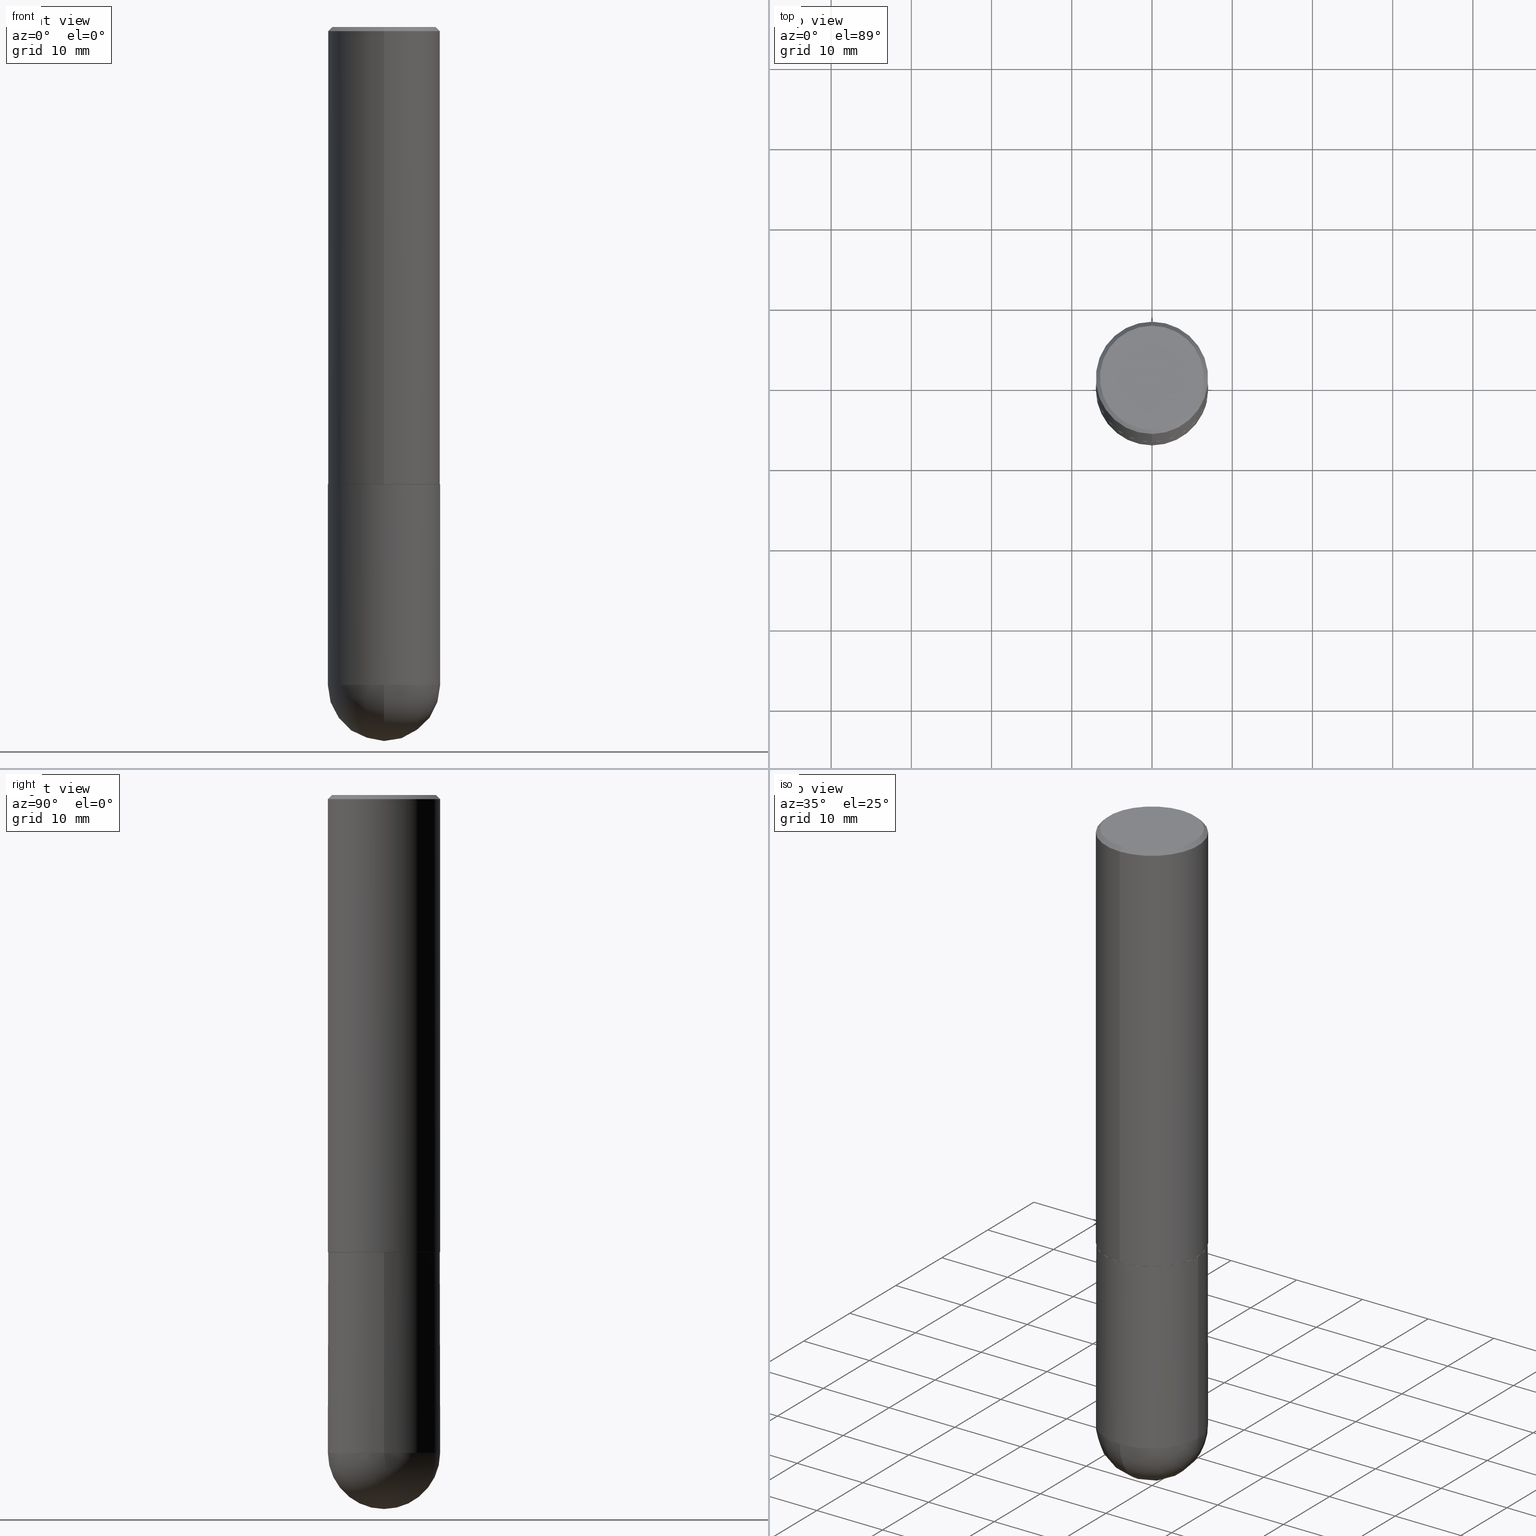
[diagram: canonical four-view strip — front | top / right | iso, engineering-drawing reading convention]
A machine part, canonical four-view strip (front | top / right | iso — engineering-drawing reading convention). The complete STEP part file that produces these views, byte-faithful:
ISO-10303-21;
HEADER;
FILE_DESCRIPTION (( 'STEP AP203' ),
    '1' );
FILE_NAME ('48879.STEP',
    '2024-04-10T12:08:35',
    ( '' ),
    ( '' ),
    'SwSTEP 2.0',
    'SolidWorks 2023',
    '' );
FILE_SCHEMA (( 'CONFIG_CONTROL_DESIGN' ));
ENDSEC;

DATA;
#1 = FACE_OUTER_BOUND ( 'NONE', #71, .T. ) ;
#2 = DIRECTION ( 'NONE',  ( -2.446173056505300385E-29, 3.490472812301231884E-15, 1.000000000000000000 ) ) ;
#3 = EDGE_CURVE ( 'NONE', #323, #331, #314, .T. ) ;
#4 = VERTEX_POINT ( 'NONE', #191 ) ;
#5 = DIRECTION ( 'NONE',  ( -4.851104656540957175E-15, -0.7071067811865490160, -0.7071067811865460184 ) ) ;
#6 = AXIS2_PLACEMENT_3D ( 'NONE', #311, #217, #283 ) ;
#7 = LOCAL_TIME ( 8, 8, 35.00000000000000000, #109 ) ;
#8 = APPLICATION_PROTOCOL_DEFINITION ( 'international standard', 'config_control_design', 1994, #233 ) ;
#9 = DIRECTION ( 'NONE',  ( -2.446173056505300385E-29, 3.490472812301231884E-15, 1.000000000000000000 ) ) ;
#10 = APPROVAL_STATUS ( 'not_yet_approved' ) ;
#11 = EDGE_CURVE ( 'NONE', #70, #4, #210, .T. ) ;
#12 = DIRECTION ( 'NONE',  ( -2.446173056505300385E-29, 3.490472812301231884E-15, 1.000000000000000000 ) ) ;
#13 = CARTESIAN_POINT ( 'NONE',  ( 4.892346113010616569E-31, -6.980945624602486202E-17, -0.02000000000000006287 ) ) ;
#14 = ORIENTED_EDGE ( 'NONE', *, *, #402, .F. ) ;
#15 = DIRECTION ( 'NONE',  ( 1.000000000000000000, -6.982962677686265922E-15, 4.883557194083112340E-29 ) ) ;
#16 = APPROVAL ( #199, 'UNSPECIFIED' ) ;
#17 = APPROVAL_ROLE ( '' ) ;
#18 = COORDINATED_UNIVERSAL_TIME_OFFSET ( 5, 0, .BEHIND. ) ;
#19 = CARTESIAN_POINT ( 'NONE',  ( 7.894706947007475996E-29, -1.127154920618732565E-14, -3.228299999999999503 ) ) ;
#20 = CIRCLE ( 'NONE', #364, 0.2555999999999998828 ) ;
#21 = ORIENTED_EDGE ( 'NONE', *, *, #86, .F. ) ;
#22 = EDGE_CURVE ( 'NONE', #155, #323, #158, .T. ) ;
#23 = ORIENTED_EDGE ( 'NONE', *, *, #305, .F. ) ;
#24 = CARTESIAN_POINT ( 'NONE',  ( 1.958255779754864988E-15, 0.2755999999999924621, -2.243100000000000538 ) ) ;
#25 = CC_DESIGN_PERSON_AND_ORGANIZATION_ASSIGNMENT ( #50, #26, ( #229 ) ) ;
#26 = PERSON_AND_ORGANIZATION_ROLE ( 'design_supplier' ) ;
#27 = LINE ( 'NONE', #93, #403 ) ;
#28 = CARTESIAN_POINT ( 'NONE',  ( 1.958255779754836589E-15, 0.2756000000000001227, -9.619743070702200430E-16 ) ) ;
#29 = DIRECTION ( 'NONE',  ( -2.445468806185136597E-29, 3.491481338843145583E-15, 1.000000000000000000 ) ) ;
#30 = AXIS2_PLACEMENT_3D ( 'NONE', #297, #15, #327 ) ;
#31 = CARTESIAN_POINT ( 'NONE',  ( 5.487010783047037445E-29, -7.829479565272891887E-15, -2.243099999999999206 ) ) ;
#32 =( LENGTH_UNIT ( ) NAMED_UNIT ( * ) SI_UNIT ( $, .METRE. ) );
#33 = ORIENTED_EDGE ( 'NONE', *, *, #45, .F. ) ;
#34 = ORIENTED_EDGE ( 'NONE', *, *, #45, .T. ) ;
#35 = CIRCLE ( 'NONE', #337, 0.2756000000000002892 ) ;
#36 = AXIS2_PLACEMENT_3D ( 'NONE', #13, #12, #135 ) ;
#37 = EDGE_CURVE ( 'NONE', #257, #88, #27, .T. ) ;
#38 = DIRECTION ( 'NONE',  ( -2.446173056505300385E-29, 3.490472812301231884E-15, 1.000000000000000000 ) ) ;
#39 = CARTESIAN_POINT ( 'NONE',  ( -1.958255779754759675E-15, -0.2756000000000117245, -3.228299999999998615 ) ) ;
#40 = DIRECTION ( 'NONE',  ( -2.446173056505300385E-29, 3.490472812301231884E-15, 1.000000000000000000 ) ) ;
#41 = VERTEX_POINT ( 'NONE', #288 ) ;
#42 = FACE_OUTER_BOUND ( 'NONE', #388, .T. ) ;
#43 = AXIS2_PLACEMENT_3D ( 'NONE', #254, #56, #408 ) ;
#44 = LOCAL_TIME ( 8, 8, 35.00000000000000000, #370 ) ;
#45 = EDGE_CURVE ( 'NONE', #200, #331, #148, .T. ) ;
#46 = DIRECTION ( 'NONE',  ( -2.446173056505300385E-29, 3.490472812301231884E-15, 1.000000000000000000 ) ) ;
#47 = VECTOR ( 'NONE', #369, 39.37007874015748143 ) ;
#48 = VECTOR ( 'NONE', #320, 39.37007874015748143 ) ;
#49 = ORIENTED_EDGE ( 'NONE', *, *, #86, .T. ) ;
#50 = PERSON_AND_ORGANIZATION ( #214, #157 ) ;
#51 = ORIENTED_EDGE ( 'NONE', *, *, #37, .T. ) ;
#52 = VECTOR ( 'NONE', #374, 39.37007874015748143 ) ;
#53 = AXIS2_PLACEMENT_3D ( 'NONE', #174, #310, #177 ) ;
#54 = DIRECTION ( 'NONE',  ( -2.446173056505300385E-29, 3.490472812301231884E-15, 1.000000000000000000 ) ) ;
#55 = CYLINDRICAL_SURFACE ( 'NONE', #53, 0.2756000000000000671 ) ;
#56 = DIRECTION ( 'NONE',  ( -2.446173056505300385E-29, 3.490472812301231884E-15, 1.000000000000000000 ) ) ;
#57 = FACE_OUTER_BOUND ( 'NONE', #401, .T. ) ;
#58 = CARTESIAN_POINT ( 'NONE',  ( -1.822148268208117987E-15, -0.2555999999999998828, 9.772773212420895646E-16 ) ) ;
#59 = ADVANCED_FACE ( 'NONE', ( #173 ), #258, .T. ) ;
#60 = DIRECTION ( 'NONE',  ( 2.446173056505300385E-29, -3.490472812301231884E-15, -1.000000000000000000 ) ) ;
#61 = LINE ( 'NONE', #251, #52 ) ;
#62 = AXIS2_PLACEMENT_3D ( 'NONE', #321, #201, #269 ) ;
#63 = EDGE_LOOP ( 'NONE', ( #223, #34, #268, #69 ) ) ;
#64 = PLANE ( 'NONE',  #271 ) ;
#65 = ORIENTED_EDGE ( 'NONE', *, *, #390, .T. ) ;
#66 = VERTEX_POINT ( 'NONE', #317 ) ;
#67 = CARTESIAN_POINT ( 'NONE',  ( -2.081998319088594359E-45, 2.970827639814557761E-31, 8.511247041789512322E-17 ) ) ;
#68 = AXIS2_PLACEMENT_3D ( 'NONE', #197, #231, #195 ) ;
#69 = ORIENTED_EDGE ( 'NONE', *, *, #22, .F. ) ;
#70 = VERTEX_POINT ( 'NONE', #126 ) ;
#71 = EDGE_LOOP ( 'NONE', ( #272, #351, #264, #21 ) ) ;
#72 = APPROVAL_ROLE ( '' ) ;
#73 = ADVANCED_FACE ( 'NONE', ( #281 ), #164, .T. ) ;
#74 = PLANE ( 'NONE',  #68 ) ;
#75 = DIRECTION ( 'NONE',  ( -6.982962677686265133E-15, -1.000000000000000000, 3.979385278462145862E-15 ) ) ;
#76 = CLOSED_SHELL ( 'NONE', ( #290, #81, #300, #273, #249 ) ) ;
#77 = DIMENSIONAL_EXPONENTS ( 1.000000000000000000, 0.000000000000000000, 0.000000000000000000, 0.000000000000000000, 0.000000000000000000, 0.000000000000000000, 0.000000000000000000 ) ;
#78 = DATE_TIME_ROLE ( 'creation_date' ) ;
#79 = ORIENTED_EDGE ( 'NONE', *, *, #348, .F. ) ;
#80 = DATE_AND_TIME ( #387, #7 ) ;
#81 = ADVANCED_FACE ( 'NONE', ( #1 ), #379, .T. ) ;
#82 = ORIENTED_EDGE ( 'NONE', *, *, #305, .T. ) ;
#83 = AXIS2_PLACEMENT_3D ( 'NONE', #319, #224, #127 ) ;
#84 = SHAPE_DEFINITION_REPRESENTATION ( #247, #389 ) ;
#85 = ORIENTED_EDGE ( 'NONE', *, *, #113, .F. ) ;
#86 = EDGE_CURVE ( 'NONE', #353, #378, #356, .T. ) ;
#87 = DIRECTION ( 'NONE',  ( -6.982962677686265922E-15, -1.000000000000000000, 3.964946289788476952E-15 ) ) ;
#88 = VERTEX_POINT ( 'NONE', #382 ) ;
#89 = VECTOR ( 'NONE', #9, 39.37007874015748143 ) ;
#90 = MECHANICAL_CONTEXT ( 'NONE', #107, 'mechanical' ) ;
#91 = AXIS2_PLACEMENT_3D ( 'NONE', #349, #289, #256 ) ;
#92 = DIRECTION ( 'NONE',  ( -2.446173056505300385E-29, 3.490472812301231884E-15, 1.000000000000000000 ) ) ;
#93 = CARTESIAN_POINT ( 'NONE',  ( 0.2756000000000000671, -1.924504513970335743E-15, 1.343874319409360268E-29 ) ) ;
#94 = CC_DESIGN_PERSON_AND_ORGANIZATION_ASSIGNMENT ( #386, #393, ( #206 ) ) ;
#95 = DIRECTION ( 'NONE',  ( 6.982962677686265922E-15, 1.000000000000000000, -3.964946289788475374E-15 ) ) ;
#96 = DIRECTION ( 'NONE',  ( 2.446173056505300105E-29, -3.490472812301231884E-15, -1.000000000000000000 ) ) ;
#97 = ORIENTED_EDGE ( 'NONE', *, *, #138, .T. ) ;
#98 = CARTESIAN_POINT ( 'NONE',  ( -1.890753248185833319E-15, -0.2756000000000000671, -0.01999999999999910530 ) ) ;
#99 = ORIENTED_EDGE ( 'NONE', *, *, #22, .T. ) ;
#100 = DIRECTION ( 'NONE',  ( -1.000000000000000000, 6.982962677686265922E-15, -4.876176775795935793E-29 ) ) ;
#101 = VERTEX_POINT ( 'NONE', #58 ) ;
#102 = AXIS2_PLACEMENT_3D ( 'NONE', #19, #270, #296 ) ;
#103 = EDGE_LOOP ( 'NONE', ( #33, #117, #99, #134 ) ) ;
#104 = ORIENTED_EDGE ( 'NONE', *, *, #348, .T. ) ;
#105 = CC_DESIGN_PERSON_AND_ORGANIZATION_ASSIGNMENT ( #399, #342, ( #202 ) ) ;
#106 = UNCERTAINTY_MEASURE_WITH_UNIT (LENGTH_MEASURE( 1.000000000000000082E-05 ), #176, 'distance_accuracy_value', 'NONE');
#107 = APPLICATION_CONTEXT ( 'configuration controlled 3d designs of mechanical parts and assemblies' ) ;
#108 = LINE ( 'NONE', #213, #111 ) ;
#109 = COORDINATED_UNIVERSAL_TIME_OFFSET ( 5, 0, .BEHIND. ) ;
#110 = CONICAL_SURFACE ( 'NONE', #83, 0.2756000000000000116, 0.7853981633974469467 ) ;
#111 = VECTOR ( 'NONE', #198, 39.37007874015748143 ) ;
#112 = COORDINATED_UNIVERSAL_TIME_OFFSET ( 5, 0, .BEHIND. ) ;
#113 = EDGE_CURVE ( 'NONE', #41, #331, #376, .T. ) ;
#114 = CARTESIAN_POINT ( 'NONE',  ( 1.924504513970335348E-15, 0.2755999999999999006, -0.02000000000000102390 ) ) ;
#115 = MANIFOLD_SOLID_BREP ( 'Body-Move/Copy2[1]', #76 ) ;
#116 = PERSON_AND_ORGANIZATION ( #214, #157 ) ;
#117 = ORIENTED_EDGE ( 'NONE', *, *, #147, .T. ) ;
#118 = PERSON_AND_ORGANIZATION_ROLE ( 'creator' ) ;
#119 = EDGE_LOOP ( 'NONE', ( #333, #266 ) ) ;
#120 = CIRCLE ( 'NONE', #137, 0.2756000000000003447 ) ;
#121 = DIRECTION ( 'NONE',  ( -1.000000000000000000, 6.982962677686265922E-15, -4.883557194083112340E-29 ) ) ;
#122 = CARTESIAN_POINT ( 'NONE',  ( 5.487010783047037445E-29, -7.829479565272891887E-15, -2.243099999999999206 ) ) ;
#123 = AXIS2_PLACEMENT_3D ( 'NONE', #343, #92, #287 ) ;
#124 = APPROVAL_PERSON_ORGANIZATION ( #293, #259, #72 ) ;
#125 = ADVANCED_FACE ( 'NONE', ( #221 ), #146, .T. ) ;
#126 = CARTESIAN_POINT ( 'NONE',  ( -1.917521551292593719E-15, -0.2746000000000077823, -2.244099999999998207 ) ) ;
#127 = DIRECTION ( 'NONE',  ( 6.982962677686265922E-15, 1.000000000000000000, -3.484816075009406388E-15 ) ) ;
#128 = EDGE_LOOP ( 'NONE', ( #302, #168, #143, #192 ) ) ;
#129 = CARTESIAN_POINT ( 'NONE',  ( 7.894706947007475996E-29, -1.127154920618732565E-14, -3.228299999999999503 ) ) ;
#130 = FACE_OUTER_BOUND ( 'NONE', #304, .T. ) ;
#131 = CARTESIAN_POINT ( 'NONE',  ( -1.924504513970335743E-15, -0.2756000000000001227, 9.619743070702200430E-16 ) ) ;
#132 = CARTESIAN_POINT ( 'NONE',  ( 7.563587169093589749E-29, -1.174573157432737594E-14, -3.228299999999999503 ) ) ;
#133 = AXIS2_PLACEMENT_3D ( 'NONE', #175, #121, #95 ) ;
#134 = ORIENTED_EDGE ( 'NONE', *, *, #407, .F. ) ;
#135 = DIRECTION ( 'NONE',  ( -6.982962677686265922E-15, -1.000000000000000000, 3.484816075009406388E-15 ) ) ;
#136 = EDGE_CURVE ( 'NONE', #66, #88, #361, .T. ) ;
#137 = AXIS2_PLACEMENT_3D ( 'NONE', #132, #262, #385 ) ;
#138 = EDGE_CURVE ( 'NONE', #4, #70, #171, .T. ) ;
#139 = CALENDAR_DATE ( 2024, 10, 4 ) ;
#140 = CLOSED_SHELL ( 'NONE', ( #232, #59, #278, #285, #125, #73, #341, #194 ) ) ;
#141 =( GEOMETRIC_REPRESENTATION_CONTEXT ( 3 ) GLOBAL_UNCERTAINTY_ASSIGNED_CONTEXT ( ( #106 ) ) GLOBAL_UNIT_ASSIGNED_CONTEXT ( ( #176, #184, #322 ) ) REPRESENTATION_CONTEXT ( 'NONE', 'WORKASPACE' ) );
#142 = EDGE_LOOP ( 'NONE', ( #49, #238, #375, #330, #274 ) ) ;
#143 = ORIENTED_EDGE ( 'NONE', *, *, #190, .F. ) ;
#144 = CIRCLE ( 'NONE', #172, 0.2756000000000000671 ) ;
#145 = LINE ( 'NONE', #280, #48 ) ;
#146 = CYLINDRICAL_SURFACE ( 'NONE', #391, 0.2756000000000001227 ) ;
#147 = EDGE_CURVE ( 'NONE', #200, #155, #235, .T. ) ;
#148 = LINE ( 'NONE', #28, #47 ) ;
#149 = APPROVAL_PERSON_ORGANIZATION ( #207, #16, #17 ) ;
#150 = CARTESIAN_POINT ( 'NONE',  ( 1.924504513970389780E-15, 0.2755999999999921846, -2.244100000000000428 ) ) ;
#151 = DIRECTION ( 'NONE',  ( 1.000000000000000000, -6.982962677686265922E-15, 0.000000000000000000 ) ) ;
#152 = EDGE_CURVE ( 'NONE', #378, #66, #61, .T. ) ;
#153 = DIRECTION ( 'NONE',  ( -6.982962677686265922E-15, -1.000000000000000000, 3.484816075009406388E-15 ) ) ;
#154 = CARTESIAN_POINT ( 'NONE',  ( -1.890753248185833319E-15, -0.2756000000000000671, -0.01999999999999910530 ) ) ;
#155 = VERTEX_POINT ( 'NONE', #182 ) ;
#156 = AXIS2_PLACEMENT_3D ( 'NONE', #350, #406, #340 ) ;
#157 = ORGANIZATION ( 'UNSPECIFIED', 'UNSPECIFIED', '' ) ;
#158 = LINE ( 'NONE', #131, #89 ) ;
#159 = DIRECTION ( 'NONE',  ( -2.446173056505300385E-29, 3.490472812301231884E-15, 1.000000000000000000 ) ) ;
#160 = DIRECTION ( 'NONE',  ( -6.982962677686265133E-15, -1.000000000000000000, 3.979385278462145862E-15 ) ) ;
#161 = EDGE_CURVE ( 'NONE', #155, #200, #35, .T. ) ;
#162 = CARTESIAN_POINT ( 'NONE',  ( -2.081998319088594359E-45, 2.970827639814557761E-31, 8.511247041789512322E-17 ) ) ;
#163 = ORIENTED_EDGE ( 'NONE', *, *, #407, .T. ) ;
#164 = CONICAL_SURFACE ( 'NONE', #43, 0.2746000000000000107, 0.7853981633975507526 ) ;
#165 = AXIS2_PLACEMENT_3D ( 'NONE', #122, #344, #87 ) ;
#166 = CC_DESIGN_APPROVAL ( #259, ( #324 ) ) ;
#167 = APPROVAL_DATE_TIME ( #80, #16 ) ;
#168 = ORIENTED_EDGE ( 'NONE', *, *, #359, .T. ) ;
#169 = CC_DESIGN_PERSON_AND_ORGANIZATION_ASSIGNMENT ( #244, #308, ( #229 ) ) ;
#170 = APPROVAL_ROLE ( '' ) ;
#171 = CIRCLE ( 'NONE', #6, 0.2746000000000000107 ) ;
#172 = AXIS2_PLACEMENT_3D ( 'NONE', #255, #345, #325 ) ;
#173 = FACE_OUTER_BOUND ( 'NONE', #63, .T. ) ;
#174 = CARTESIAN_POINT ( 'NONE',  ( 0.000000000000000000, 0.000000000000000000, 0.000000000000000000 ) ) ;
#175 = CARTESIAN_POINT ( 'NONE',  ( 7.563587169093589749E-29, -1.174573157432737594E-14, -3.228299999999999503 ) ) ;
#176 =( CONVERSION_BASED_UNIT ( 'INCH', #347 ) LENGTH_UNIT ( ) NAMED_UNIT ( #77 ) );
#177 = DIRECTION ( 'NONE',  ( 1.000000000000000000, -6.982962677686267499E-15, 4.876176775795935793E-29 ) ) ;
#178 = CARTESIAN_POINT ( 'NONE',  ( 1.924504513970335348E-15, 0.2755999999999999006, -0.02000000000000102390 ) ) ;
#179 = AXIS2_PLACEMENT_3D ( 'NONE', #412, #187, #309 ) ;
#180 = CARTESIAN_POINT ( 'NONE',  ( 4.892346113010616569E-31, -6.980945624602486202E-17, -0.02000000000000006287 ) ) ;
#181 = ORIENTED_EDGE ( 'NONE', *, *, #11, .T. ) ;
#182 = CARTESIAN_POINT ( 'NONE',  ( -1.924504513970282100E-15, -0.2756000000000080608, -2.243099999999998317 ) ) ;
#183 = ORIENTED_EDGE ( 'NONE', *, *, #147, .F. ) ;
#184 =( NAMED_UNIT ( * ) PLANE_ANGLE_UNIT ( ) SI_UNIT ( $, .RADIAN. ) );
#185 = PLANE ( 'NONE',  #219 ) ;
#186 = DIRECTION ( 'NONE',  ( 6.982962677686265922E-15, 1.000000000000000000, -3.490472812301231884E-15 ) ) ;
#187 = DIRECTION ( 'NONE',  ( 0.000000000000000000, 0.000000000000000000, 1.000000000000000000 ) ) ;
#188 = CARTESIAN_POINT ( 'NONE',  ( 5.489456956103543393E-29, -7.832970038085193141E-15, -2.244099999999999540 ) ) ;
#189 = DIRECTION ( 'NONE',  ( -2.446173056505300385E-29, 3.490472812301231884E-15, 1.000000000000000000 ) ) ;
#190 = EDGE_CURVE ( 'NONE', #257, #353, #373, .T. ) ;
#191 = CARTESIAN_POINT ( 'NONE',  ( 1.954703066076090911E-15, 0.2745999999999921837, -2.244100000000000428 ) ) ;
#192 = ORIENTED_EDGE ( 'NONE', *, *, #390, .F. ) ;
#193 = EDGE_LOOP ( 'NONE', ( #14, #82, #240, #85 ) ) ;
#194 = ADVANCED_FACE ( 'NONE', ( #130 ), #64, .F. ) ;
#195 = DIRECTION ( 'NONE',  ( -6.982962677686265922E-15, -1.000000000000000000, 3.490472812301231884E-15 ) ) ;
#196 = CC_DESIGN_APPROVAL ( #329, ( #202 ) ) ;
#197 = CARTESIAN_POINT ( 'NONE',  ( 5.489456956103543393E-29, -7.832970038085193141E-15, -2.244099999999999540 ) ) ;
#198 = DIRECTION ( 'NONE',  ( -4.937700262165053702E-15, -0.7071067811866175168, 0.7071067811864775177 ) ) ;
#199 = APPROVAL_STATUS ( 'not_yet_approved' ) ;
#200 = VERTEX_POINT ( 'NONE', #24 ) ;
#201 = DIRECTION ( 'NONE',  ( -2.445468806185136597E-29, 3.491481338843145583E-15, 1.000000000000000000 ) ) ;
#202 = SECURITY_CLASSIFICATION ( '', '', #303 ) ;
#203 = EDGE_CURVE ( 'NONE', #4, #200, #145, .T. ) ;
#204 = EDGE_LOOP ( 'NONE', ( #181, #230, #276, #248 ) ) ;
#205 = DATE_AND_TIME ( #306, #44 ) ;
#206 = PRODUCT ( '48879', '48879', '', ( #90 ) ) ;
#207 = PERSON_AND_ORGANIZATION ( #214, #157 ) ;
#208 = DESIGN_CONTEXT ( 'detailed design', #233, 'design' ) ;
#209 = DIRECTION ( 'NONE',  ( 1.000000000000000000, -6.982962677686264344E-15, 0.000000000000000000 ) ) ;
#210 = CIRCLE ( 'NONE', #227, 0.2746000000000000107 ) ;
#211 = CIRCLE ( 'NONE', #36, 0.2756000000000000116 ) ;
#212 = DIRECTION ( 'NONE',  ( -6.982962677686265922E-15, -1.000000000000000000, 3.964946289788476952E-15 ) ) ;
#213 = CARTESIAN_POINT ( 'NONE',  ( -1.917521551292593719E-15, -0.2746000000000077823, -2.244099999999998207 ) ) ;
#214 = PERSON ( 'UNSPECIFIED', 'UNSPECIFIED', 'UNSPECIFIED', ('UNSPECIFIED'), ('UNSPECIFIED'), ('UNSPECIFIED') ) ;
#215 = DIRECTION ( 'NONE',  ( -6.982962677686265922E-15, -1.000000000000000000, 3.490472812301232279E-15 ) ) ;
#216 = FACE_OUTER_BOUND ( 'NONE', #119, .T. ) ;
#217 = DIRECTION ( 'NONE',  ( -2.446173056505300385E-29, 3.490472812301231884E-15, 1.000000000000000000 ) ) ;
#218 = CC_DESIGN_DATE_AND_TIME_ASSIGNMENT ( #245, #78, ( #324 ) ) ;
#219 = AXIS2_PLACEMENT_3D ( 'NONE', #150, #282, #100 ) ;
#220 = FACE_OUTER_BOUND ( 'NONE', #142, .T. ) ;
#221 = FACE_OUTER_BOUND ( 'NONE', #103, .T. ) ;
#222 = EDGE_LOOP ( 'NONE', ( #358, #355 ) ) ;
#223 = ORIENTED_EDGE ( 'NONE', *, *, #161, .T. ) ;
#224 = DIRECTION ( 'NONE',  ( 2.446173056505300385E-29, -3.490472812301231884E-15, -1.000000000000000000 ) ) ;
#225 = EDGE_CURVE ( 'NONE', #70, #155, #108, .T. ) ;
#226 = ORIENTED_EDGE ( 'NONE', *, *, #113, .T. ) ;
#227 = AXIS2_PLACEMENT_3D ( 'NONE', #295, #40, #160 ) ;
#228 = ORIENTED_EDGE ( 'NONE', *, *, #402, .T. ) ;
#229 = PRODUCT_DEFINITION_FORMATION_WITH_SPECIFIED_SOURCE ( 'ANY', '', #206, .NOT_KNOWN. ) ;
#230 = ORIENTED_EDGE ( 'NONE', *, *, #203, .T. ) ;
#231 = DIRECTION ( 'NONE',  ( -2.446173056505300105E-29, 3.490472812301231884E-15, 1.000000000000000000 ) ) ;
#232 = ADVANCED_FACE ( 'NONE', ( #368 ), #397, .T. ) ;
#233 = APPLICATION_CONTEXT ( 'configuration controlled 3d designs of mechanical parts and assemblies' ) ;
#234 = CARTESIAN_POINT ( 'NONE',  ( -0.2756000000000000671, -7.595135459587778194E-15, -3.228299999999999503 ) ) ;
#235 = CIRCLE ( 'NONE', #165, 0.2756000000000002892 ) ;
#236 = AXIS2_PLACEMENT_3D ( 'NONE', #67, #189, #294 ) ;
#237 = CALENDAR_DATE ( 2024, 10, 4 ) ;
#238 = ORIENTED_EDGE ( 'NONE', *, *, #152, .T. ) ;
#239 = APPROVAL_DATE_TIME ( #400, #259 ) ;
#240 = ORIENTED_EDGE ( 'NONE', *, *, #3, .T. ) ;
#241 = EDGE_CURVE ( 'NONE', #378, #367, #144, .T. ) ;
#242 = EDGE_LOOP ( 'NONE', ( #253, #97, #366, #183 ) ) ;
#243 = AXIS2_PLACEMENT_3D ( 'NONE', #188, #46, #75 ) ;
#244 = PERSON_AND_ORGANIZATION ( #214, #157 ) ;
#245 = DATE_AND_TIME ( #237, #411 ) ;
#246 = COORDINATED_UNIVERSAL_TIME_OFFSET ( 5, 0, .BEHIND. ) ;
#247 = PRODUCT_DEFINITION_SHAPE ( 'NONE', 'NONE',  #324 ) ;
#248 = ORIENTED_EDGE ( 'NONE', *, *, #225, .F. ) ;
#249 = ADVANCED_FACE ( 'NONE', ( #42 ), #383, .T. ) ;
#250 = DIRECTION ( 'NONE',  ( -2.445468806185136877E-29, 3.491481338843145188E-15, 1.000000000000000000 ) ) ;
#251 = CARTESIAN_POINT ( 'NONE',  ( -0.2756000000000000671, 1.958255779754836589E-15, -1.355658510874252287E-29 ) ) ;
#252 = CIRCLE ( 'NONE', #102, 0.2756000000000000671 ) ;
#253 = ORIENTED_EDGE ( 'NONE', *, *, #203, .F. ) ;
#254 = CARTESIAN_POINT ( 'NONE',  ( 5.489456956103543393E-29, -7.832970038085193141E-15, -2.244099999999999540 ) ) ;
#255 = CARTESIAN_POINT ( 'NONE',  ( 7.894706947007475996E-29, -1.127154920618732565E-14, -3.228299999999999503 ) ) ;
#256 = DIRECTION ( 'NONE',  ( 6.982962677686265922E-15, 1.000000000000000000, -3.964946289788475374E-15 ) ) ;
#257 = VERTEX_POINT ( 'NONE', #275 ) ;
#258 = CYLINDRICAL_SURFACE ( 'NONE', #123, 0.2756000000000001227 ) ;
#259 = APPROVAL ( #10, 'UNSPECIFIED' ) ;
#260 = CARTESIAN_POINT ( 'NONE',  ( 1.784845260416608752E-15, 0.2555999999999998828, -8.496086156152468860E-16 ) ) ;
#261 = MANIFOLD_SOLID_BREP ( 'Body-Move/Copy2[2]', #140 ) ;
#262 = DIRECTION ( 'NONE',  ( -1.000000000000000000, 7.105427357601001070E-15, -4.926315508542082329E-29 ) ) ;
#263 = DIRECTION ( 'NONE',  ( 6.982962677686265922E-15, 1.000000000000000000, -3.484816075009406388E-15 ) ) ;
#264 = ORIENTED_EDGE ( 'NONE', *, *, #241, .F. ) ;
#265 = VERTEX_POINT ( 'NONE', #372 ) ;
#266 = ORIENTED_EDGE ( 'NONE', *, *, #136, .T. ) ;
#267 = AXIS2_PLACEMENT_3D ( 'NONE', #129, #29, #209 ) ;
#268 = ORIENTED_EDGE ( 'NONE', *, *, #3, .F. ) ;
#269 = DIRECTION ( 'NONE',  ( 1.000000000000000000, -6.982962677686267499E-15, 4.876176775795935793E-29 ) ) ;
#270 = DIRECTION ( 'NONE',  ( -2.445468806185136597E-29, 3.491481338843145583E-15, 1.000000000000000000 ) ) ;
#271 = AXIS2_PLACEMENT_3D ( 'NONE', #260, #96, #186 ) ;
#272 = ORIENTED_EDGE ( 'NONE', *, *, #359, .F. ) ;
#273 = ADVANCED_FACE ( 'NONE', ( #216 ), #185, .F. ) ;
#274 = ORIENTED_EDGE ( 'NONE', *, *, #190, .T. ) ;
#275 = CARTESIAN_POINT ( 'NONE',  ( 0.2756000000000000671, -1.147789575331294974E-14, -3.228299999999999503 ) ) ;
#276 = ORIENTED_EDGE ( 'NONE', *, *, #161, .F. ) ;
#277 = VECTOR ( 'NONE', #313, 39.37007874015748143 ) ;
#278 = ADVANCED_FACE ( 'NONE', ( #286 ), #384, .T. ) ;
#279 = CC_DESIGN_SECURITY_CLASSIFICATION ( #202, ( #229 ) ) ;
#280 = CARTESIAN_POINT ( 'NONE',  ( 1.951150352397289618E-15, 0.2745999999999921837, -2.244100000000000428 ) ) ;
#281 = FACE_OUTER_BOUND ( 'NONE', #242, .T. ) ;
#282 = DIRECTION ( 'NONE',  ( 2.438088387897960049E-29, -3.491481338843145188E-15, -1.000000000000000000 ) ) ;
#283 = DIRECTION ( 'NONE',  ( -6.982962677686265133E-15, -1.000000000000000000, 3.979385278462145862E-15 ) ) ;
#284 = AXIS2_PLACEMENT_3D ( 'NONE', #180, #60, #263 ) ;
#285 = ADVANCED_FACE ( 'NONE', ( #57 ), #110, .T. ) ;
#286 = FACE_OUTER_BOUND ( 'NONE', #193, .T. ) ;
#287 = DIRECTION ( 'NONE',  ( -6.982962677686265922E-15, -1.000000000000000000, 3.490472812301232279E-15 ) ) ;
#288 = CARTESIAN_POINT ( 'NONE',  ( 1.854674887193472050E-15, 0.2555999999999998828, -8.070523804062993922E-16 ) ) ;
#289 = DIRECTION ( 'NONE',  ( -1.000000000000000000, 6.982962677686265922E-15, -4.883557194083112340E-29 ) ) ;
#290 = ADVANCED_FACE ( 'NONE', ( #220 ), #55, .T. ) ;
#291 = CIRCLE ( 'NONE', #404, 0.2756000000000000116 ) ;
#292 = CC_DESIGN_APPROVAL ( #16, ( #229 ) ) ;
#293 = PERSON_AND_ORGANIZATION ( #214, #157 ) ;
#294 = DIRECTION ( 'NONE',  ( -6.982962677686265922E-15, -1.000000000000000000, 3.490472812301231490E-15 ) ) ;
#295 = CARTESIAN_POINT ( 'NONE',  ( 5.489456956103543393E-29, -7.832970038085193141E-15, -2.244099999999999540 ) ) ;
#296 = DIRECTION ( 'NONE',  ( 1.000000000000000000, -6.982962677686264344E-15, 0.000000000000000000 ) ) ;
#297 = CARTESIAN_POINT ( 'NONE',  ( 7.563587169093589749E-29, -1.174573157432737594E-14, -3.228299999999999503 ) ) ;
#298 = LOCAL_TIME ( 8, 8, 35.00000000000000000, #246 ) ;
#299 = DIRECTION ( 'NONE',  ( 1.000000000000000000, -6.982962677686265922E-15, 0.000000000000000000 ) ) ;
#300 = ADVANCED_FACE ( 'NONE', ( #316 ), #352, .T. ) ;
#301 = CIRCLE ( 'NONE', #236, 0.2555999999999998828 ) ;
#302 = ORIENTED_EDGE ( 'NONE', *, *, #312, .F. ) ;
#303 = SECURITY_CLASSIFICATION_LEVEL ( 'unclassified' ) ;
#304 = EDGE_LOOP ( 'NONE', ( #104, #228 ) ) ;
#305 = EDGE_CURVE ( 'NONE', #101, #323, #377, .T. ) ;
#306 = CALENDAR_DATE ( 2024, 10, 4 ) ;
#307 = DIRECTION ( 'NONE',  ( -2.445468806185136597E-29, 3.491481338843145583E-15, 1.000000000000000000 ) ) ;
#308 = PERSON_AND_ORGANIZATION_ROLE ( 'creator' ) ;
#309 = DIRECTION ( 'NONE',  ( 1.000000000000000000, 0.000000000000000000, 0.000000000000000000 ) ) ;
#310 = DIRECTION ( 'NONE',  ( -2.445468806185136597E-29, 3.491481338843145583E-15, 1.000000000000000000 ) ) ;
#311 = CARTESIAN_POINT ( 'NONE',  ( 5.489456956103543393E-29, -7.832970038085193141E-15, -2.244099999999999540 ) ) ;
#312 = EDGE_CURVE ( 'NONE', #265, #367, #120, .T. ) ;
#313 = DIRECTION ( 'NONE',  ( 4.937700262164540942E-15, 0.7071067811865441310, -0.7071067811865509034 ) ) ;
#314 = CIRCLE ( 'NONE', #409, 0.2756000000000000116 ) ;
#315 = VECTOR ( 'NONE', #5, 39.37007874015748143 ) ;
#316 = FACE_OUTER_BOUND ( 'NONE', #128, .T. ) ;
#317 = CARTESIAN_POINT ( 'NONE',  ( -0.2756000000000000116, -7.595135459587776616E-15, -2.244099999999999540 ) ) ;
#318 = CARTESIAN_POINT ( 'NONE',  ( 4.892346113010616569E-31, -6.980945624602486202E-17, -0.02000000000000006287 ) ) ;
#319 = CARTESIAN_POINT ( 'NONE',  ( 4.892346113010616569E-31, -6.980945624602486202E-17, -0.02000000000000006287 ) ) ;
#320 = DIRECTION ( 'NONE',  ( 5.024295867788576727E-15, 0.7071067811866224018, 0.7071067811864726327 ) ) ;
#321 = CARTESIAN_POINT ( 'NONE',  ( 0.000000000000000000, 0.000000000000000000, 0.000000000000000000 ) ) ;
#322 =( NAMED_UNIT ( * ) SI_UNIT ( $, .STERADIAN. ) SOLID_ANGLE_UNIT ( ) );
#323 = VERTEX_POINT ( 'NONE', #98 ) ;
#324 = PRODUCT_DEFINITION ( 'UNKNOWN', '', #229, #208 ) ;
#325 = DIRECTION ( 'NONE',  ( 1.000000000000000000, -6.982962677686264344E-15, 0.000000000000000000 ) ) ;
#326 = AXIS2_PLACEMENT_3D ( 'NONE', #338, #307, #151 ) ;
#327 = DIRECTION ( 'NONE',  ( 6.982962677686265922E-15, 1.000000000000000000, 0.000000000000000000 ) ) ;
#328 = DIRECTION ( 'NONE',  ( -2.445468806185136597E-29, 3.491481338843145583E-15, 1.000000000000000000 ) ) ;
#329 = APPROVAL ( #405, 'UNSPECIFIED' ) ;
#330 = ORIENTED_EDGE ( 'NONE', *, *, #37, .F. ) ;
#331 = VERTEX_POINT ( 'NONE', #114 ) ;
#332 = APPROVAL_DATE_TIME ( #205, #329 ) ;
#333 = ORIENTED_EDGE ( 'NONE', *, *, #380, .T. ) ;
#334 = CALENDAR_DATE ( 2024, 10, 4 ) ;
#335 = ORIENTED_EDGE ( 'NONE', *, *, #136, .F. ) ;
#336 = PRODUCT_RELATED_PRODUCT_CATEGORY ( 'detail', '', ( #206 ) ) ;
#337 = AXIS2_PLACEMENT_3D ( 'NONE', #31, #2, #212 ) ;
#338 = CARTESIAN_POINT ( 'NONE',  ( 5.487876547960063631E-29, -7.835233272497900762E-15, -2.244099999999999540 ) ) ;
#339 = DATE_AND_TIME ( #334, #298 ) ;
#340 = DIRECTION ( 'NONE',  ( 1.000000000000000000, -6.982962677686264344E-15, 0.000000000000000000 ) ) ;
#341 = ADVANCED_FACE ( 'NONE', ( #360 ), #74, .F. ) ;
#342 = PERSON_AND_ORGANIZATION_ROLE ( 'classification_officer' ) ;
#343 = CARTESIAN_POINT ( 'NONE',  ( 0.000000000000000000, 0.000000000000000000, 0.000000000000000000 ) ) ;
#344 = DIRECTION ( 'NONE',  ( -2.446173056505300385E-29, 3.490472812301231884E-15, 1.000000000000000000 ) ) ;
#345 = DIRECTION ( 'NONE',  ( -2.445468806185136597E-29, 3.491481338843145583E-15, 1.000000000000000000 ) ) ;
#346 = APPROVAL_PERSON_ORGANIZATION ( #116, #329, #170 ) ;
#347 = LENGTH_MEASURE_WITH_UNIT ( LENGTH_MEASURE( 0.02539999999999999897 ), #32 );
#348 = EDGE_CURVE ( 'NONE', #41, #101, #20, .T. ) ;
#349 = CARTESIAN_POINT ( 'NONE',  ( 7.563587169093589749E-29, -1.174573157432737594E-14, -3.228299999999999503 ) ) ;
#350 = CARTESIAN_POINT ( 'NONE',  ( 7.894706947007475996E-29, -1.127154920618732565E-14, -3.228299999999999503 ) ) ;
#351 = ORIENTED_EDGE ( 'NONE', *, *, #312, .T. ) ;
#352 = SPHERICAL_SURFACE ( 'NONE', #91, 0.2756000000000003447 ) ;
#353 = VERTEX_POINT ( 'NONE', #395 ) ;
#354 = CARTESIAN_POINT ( 'NONE',  ( 5.487876547960063631E-29, -7.835233272497900762E-15, -2.244099999999999540 ) ) ;
#355 = ORIENTED_EDGE ( 'NONE', *, *, #138, .F. ) ;
#356 = CIRCLE ( 'NONE', #267, 0.2756000000000000671 ) ;
#357 = LOCAL_TIME ( 8, 8, 35.00000000000000000, #18 ) ;
#358 = ORIENTED_EDGE ( 'NONE', *, *, #11, .F. ) ;
#359 = EDGE_CURVE ( 'NONE', #265, #353, #392, .T. ) ;
#360 = FACE_OUTER_BOUND ( 'NONE', #222, .T. ) ;
#361 = CIRCLE ( 'NONE', #326, 0.2756000000000000116 ) ;
#362 = CC_DESIGN_DATE_AND_TIME_ASSIGNMENT ( #339, #365, ( #202 ) ) ;
#363 = ORIENTED_EDGE ( 'NONE', *, *, #241, .T. ) ;
#364 = AXIS2_PLACEMENT_3D ( 'NONE', #162, #159, #394 ) ;
#365 = DATE_TIME_ROLE ( 'classification_date' ) ;
#366 = ORIENTED_EDGE ( 'NONE', *, *, #225, .T. ) ;
#367 = VERTEX_POINT ( 'NONE', #39 ) ;
#368 = FACE_OUTER_BOUND ( 'NONE', #204, .T. ) ;
#369 = DIRECTION ( 'NONE',  ( -2.446173056505300385E-29, 3.490472812301231884E-15, 1.000000000000000000 ) ) ;
#370 = COORDINATED_UNIVERSAL_TIME_OFFSET ( 5, 0, .BEHIND. ) ;
#371 = CC_DESIGN_PERSON_AND_ORGANIZATION_ASSIGNMENT ( #396, #118, ( #324 ) ) ;
#372 = CARTESIAN_POINT ( 'NONE',  ( 8.249342563543106087E-29, -1.269110819842029813E-14, -3.503899999999999793 ) ) ;
#373 = CIRCLE ( 'NONE', #156, 0.2756000000000000671 ) ;
#374 = DIRECTION ( 'NONE',  ( -2.445468806185136877E-29, 3.491481338843145188E-15, 1.000000000000000000 ) ) ;
#375 = ORIENTED_EDGE ( 'NONE', *, *, #380, .F. ) ;
#376 = LINE ( 'NONE', #178, #277 ) ;
#377 = LINE ( 'NONE', #154, #315 ) ;
#378 = VERTEX_POINT ( 'NONE', #234 ) ;
#379 = SPHERICAL_SURFACE ( 'NONE', #133, 0.2756000000000003447 ) ;
#380 = EDGE_CURVE ( 'NONE', #88, #66, #291, .T. ) ;
#381 = APPLICATION_PROTOCOL_DEFINITION ( 'international standard', 'config_control_design', 1994, #107 ) ;
#382 = CARTESIAN_POINT ( 'NONE',  ( 0.2756000000000000116, -9.759737786468235716E-15, -2.244099999999999540 ) ) ;
#383 = CYLINDRICAL_SURFACE ( 'NONE', #62, 0.2756000000000000671 ) ;
#384 = CONICAL_SURFACE ( 'NONE', #284, 0.2756000000000000116, 0.7853981633974469467 ) ;
#385 = DIRECTION ( 'NONE',  ( -7.105427357601001859E-15, -1.000000000000000000, 0.000000000000000000 ) ) ;
#386 = PERSON_AND_ORGANIZATION ( #214, #157 ) ;
#387 = CALENDAR_DATE ( 2024, 10, 4 ) ;
#388 = EDGE_LOOP ( 'NONE', ( #398, #363, #65, #51, #335 ) ) ;
#389 = ADVANCED_BREP_SHAPE_REPRESENTATION ( '48879', ( #115, #261, #179 ), #141 ) ;
#390 = EDGE_CURVE ( 'NONE', #367, #257, #252, .T. ) ;
#391 = AXIS2_PLACEMENT_3D ( 'NONE', #410, #54, #215 ) ;
#392 = CIRCLE ( 'NONE', #30, 0.2756000000000003447 ) ;
#393 = PERSON_AND_ORGANIZATION_ROLE ( 'design_owner' ) ;
#394 = DIRECTION ( 'NONE',  ( -6.982962677686265922E-15, -1.000000000000000000, 3.490472812301231490E-15 ) ) ;
#395 = CARTESIAN_POINT ( 'NONE',  ( 1.924504513970413840E-15, 0.2755999999999887429, -3.228300000000000836 ) ) ;
#396 = PERSON_AND_ORGANIZATION ( #214, #157 ) ;
#397 = CONICAL_SURFACE ( 'NONE', #243, 0.2746000000000000107, 0.7853981633975507526 ) ;
#398 = ORIENTED_EDGE ( 'NONE', *, *, #152, .F. ) ;
#399 = PERSON_AND_ORGANIZATION ( #214, #157 ) ;
#400 = DATE_AND_TIME ( #139, #357 ) ;
#401 = EDGE_LOOP ( 'NONE', ( #23, #79, #226, #163 ) ) ;
#402 = EDGE_CURVE ( 'NONE', #101, #41, #301, .T. ) ;
#403 = VECTOR ( 'NONE', #250, 39.37007874015748143 ) ;
#404 = AXIS2_PLACEMENT_3D ( 'NONE', #354, #328, #299 ) ;
#405 = APPROVAL_STATUS ( 'not_yet_approved' ) ;
#406 = DIRECTION ( 'NONE',  ( -2.445468806185136597E-29, 3.491481338843145583E-15, 1.000000000000000000 ) ) ;
#407 = EDGE_CURVE ( 'NONE', #331, #323, #211, .T. ) ;
#408 = DIRECTION ( 'NONE',  ( -6.982962677686265133E-15, -1.000000000000000000, 3.979385278462145862E-15 ) ) ;
#409 = AXIS2_PLACEMENT_3D ( 'NONE', #318, #38, #153 ) ;
#410 = CARTESIAN_POINT ( 'NONE',  ( 0.000000000000000000, 0.000000000000000000, 0.000000000000000000 ) ) ;
#411 = LOCAL_TIME ( 8, 8, 35.00000000000000000, #112 ) ;
#412 = CARTESIAN_POINT ( 'NONE',  ( 0.000000000000000000, 0.000000000000000000, 0.000000000000000000 ) ) ;
ENDSEC;
END-ISO-10303-21;
